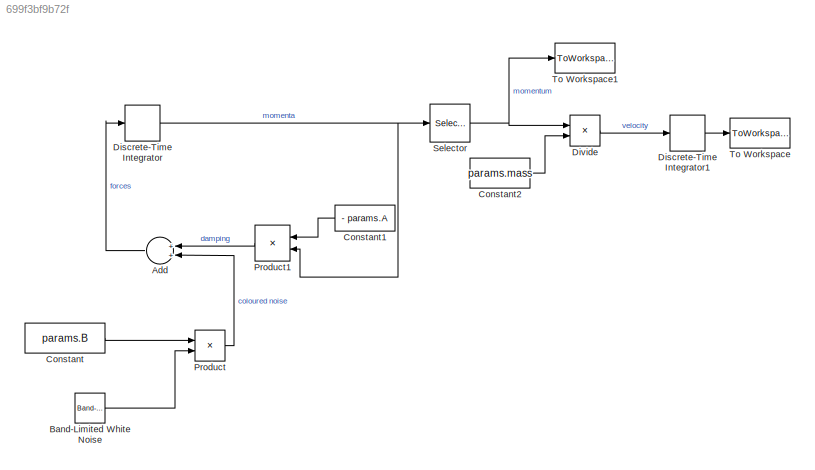
MODEL slx_699f3bf9b72f
KIND model
CONFIG AbsTol = auto
CONFIG FixedStep = params.sample_time
CONFIG MaxStep = auto
CONFIG MinStep = auto
CONFIG RelTol = 1e-3
CONFIG SampleTimeConstraint = Unconstrained
CONFIG Solver = FixedStepDiscrete
CONFIG SolverMode = Auto
CONFIG SolverName = FixedStepDiscrete
CONFIG StartTime = 0.0
CONFIG StopTime = params.stop_time
BLOCK [Sum] Add
  InputSameDT = off
  OutDataTypeStr = Inherit: Inherit via internal rule
  Ports = [2, 1]
  SaturateOnIntegerOverflow = off
BLOCK [Reference] Band-Limited White Noise  REF=simulink/Sources/Band-Limited
White Noise
  Ports = [0, 1]
  SourceBlock = simulink/Sources/Band-Limited\nWhite Noise
  SourceType = Band-Limited White Noise.
BLOCK [Constant] Constant
  Value = params.B
BLOCK [Constant] Constant1
  Value = - params.A
BLOCK [Constant] Constant2
  Value = params.mass
BLOCK [DiscreteIntegrator] Discrete-Time Integrator
  ICPrevOutput = DiscIntNeverNeededParam
  ICPrevScaledInput = DiscIntNeverNeededParam
  InitialCondition = params.p_init
  InitialConditionSetting = State (most efficient)
  Ports = [1, 1]
  SampleTime = params.sample_time
BLOCK [DiscreteIntegrator] Discrete-Time Integrator1
  ICPrevOutput = DiscIntNeverNeededParam
  ICPrevScaledInput = DiscIntNeverNeededParam
  InitialCondition = params.r_init
  InitialConditionSetting = State (most efficient)
  Ports = [1, 1]
  SampleTime = params.sample_time
BLOCK [Product] Divide
  InputSameDT = off
  Inputs = */
  OutDataTypeStr = Inherit: Inherit via internal rule
  Ports = [2, 1]
  RndMeth = Floor
  SaturateOnIntegerOverflow = off
BLOCK [Product] Product
  InputSameDT = off
  Multiplication = Matrix(*)
  OutDataTypeStr = Inherit: Inherit via internal rule
  Ports = [2, 1]
  RndMeth = Floor
  SaturateOnIntegerOverflow = off
BLOCK [Product] Product1
  InputSameDT = off
  Multiplication = Matrix(*)
  OutDataTypeStr = Inherit: Inherit via internal rule
  Ports = [2, 1]
  RndMeth = Floor
  SaturateOnIntegerOverflow = off
BLOCK [Selector] Selector
  IndexOptions = Index vector (dialog)
  Indices = 1
  OutputSizes = 1
  Ports = [1, 1]
BLOCK [ToWorkspace] To Workspace
  Decimation = params.decimation
  FixptAsFi = on
  MaxDataPoints = params.last_position
  Ports = [1]
  SampleTime = -1
  Save2DSignal = 3-D array (concatenate along third dimension)
  SaveFormat = Timeseries
  VariableName = position
BLOCK [ToWorkspace] To Workspace1
  Decimation = params.decimation
  FixptAsFi = on
  MaxDataPoints = params.last_momenta
  Ports = [1]
  SampleTime = -1
  Save2DSignal = 3-D array (concatenate along third dimension)
  SaveFormat = Timeseries
  VariableName = momentum
LINE Add:1 -> Discrete-Time Integrator:1
LINE Band-Limited White Noise:1 -> Product:2
LINE Constant1:1 -> Product1:1
LINE Constant2:1 -> Divide:2
LINE Constant:1 -> Product:1
LINE Discrete-Time Integrator1:1 -> To Workspace:1
NET Discrete-Time Integrator:1 -> Product1:2, Selector:1
LINE Divide:1 -> Discrete-Time Integrator1:1
LINE Product1:1 -> Add:1
LINE Product:1 -> Add:2
NET Selector:1 -> Divide:1, To Workspace1:1
note: NET lines group one-source signal fan-out (src -> all destinations, sorted); 1:1 wires keep LINE
